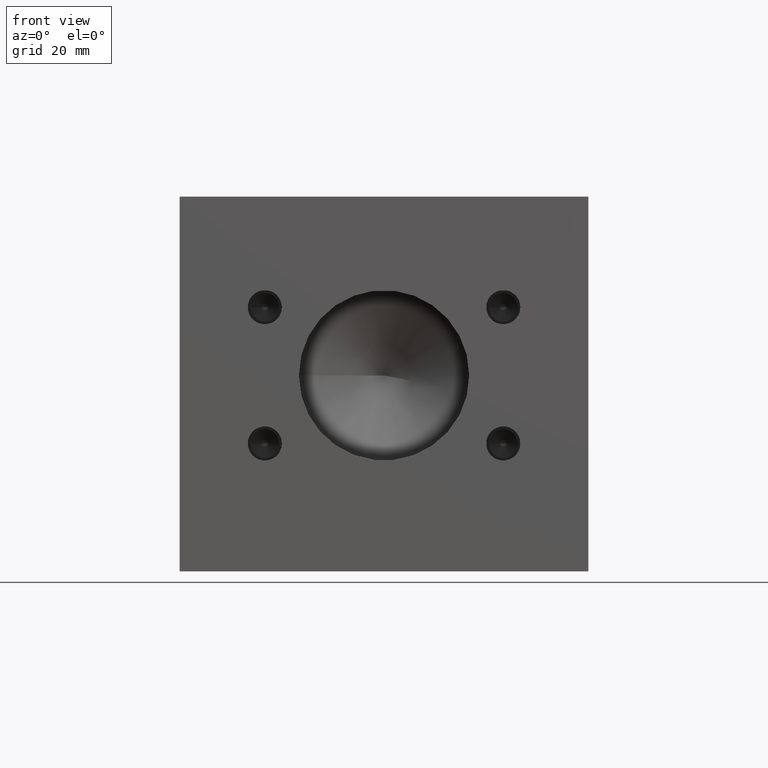
[diagram: clean part render]
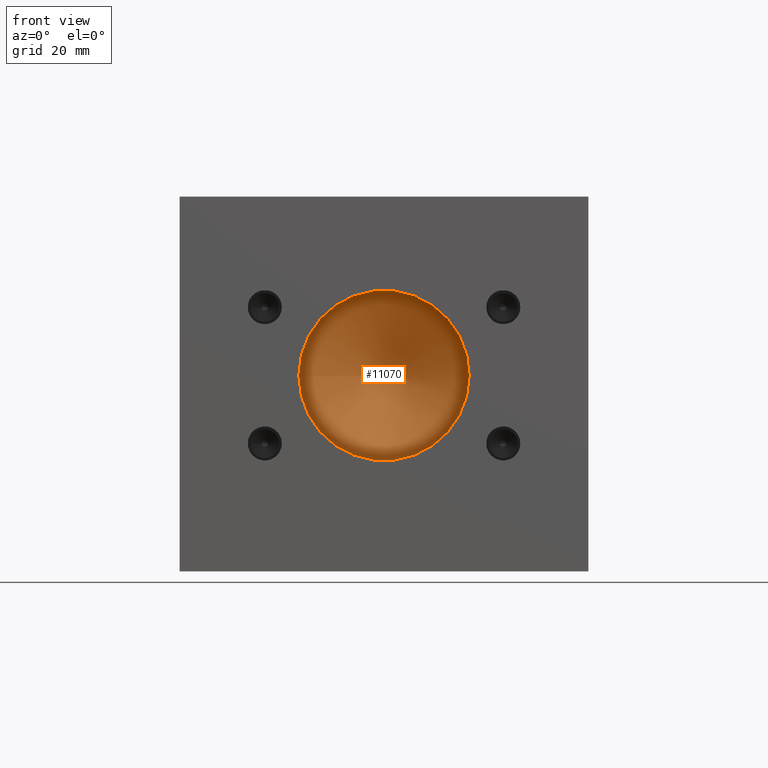
[diagram: same view with one face highlighted and labeled with its STEP entity id]
A machine part, front view. The second image highlights one B-rep face of the part: STEP entity #11070.
In plain terms, the highlighted conical surface has half-angle 60 deg.
Its self-contained STEP definition (entity closure, byte-faithful):
#91=CONICAL_SURFACE('',#11634,15.875,1.0471975511966);
#487=CIRCLE('',#11635,31.75);
#488=CIRCLE('',#11636,31.75);
#1216=FACE_OUTER_BOUND('',#1845,.T.);
#1845=EDGE_LOOP('',(#9267,#9268,#9269,#9270));
#2997=LINE('',#18315,#4086);
#4086=VECTOR('',#13808,15.875);
#5037=VERTEX_POINT('',#18311);
#5038=VERTEX_POINT('',#18312);
#5039=VERTEX_POINT('',#18314);
#6505=EDGE_CURVE('',#5037,#5038,#487,.T.);
#6506=EDGE_CURVE('',#5038,#5039,#2997,.T.);
#6507=EDGE_CURVE('',#5038,#5037,#488,.T.);
#9267=ORIENTED_EDGE('',*,*,#6505,.T.);
#9268=ORIENTED_EDGE('',*,*,#6506,.T.);
#9269=ORIENTED_EDGE('',*,*,#6506,.F.);
#9270=ORIENTED_EDGE('',*,*,#6507,.T.);
#11070=ADVANCED_FACE('',(#1216),#91,.F.);
#11634=AXIS2_PLACEMENT_3D('',#18310,#13804,#13805);
#11635=AXIS2_PLACEMENT_3D('',#18313,#13806,#13807);
#11636=AXIS2_PLACEMENT_3D('',#18316,#13809,#13810);
#13804=DIRECTION('center_axis',(0.,-1.,0.));
#13805=DIRECTION('ref_axis',(1.,0.,0.));
#13806=DIRECTION('center_axis',(0.,-1.,0.));
#13807=DIRECTION('ref_axis',(1.,0.,0.));
#13808=DIRECTION('',(0.866025403784439,0.5,1.06057523872491E-16));
#13809=DIRECTION('center_axis',(0.,-1.,0.));
#13810=DIRECTION('ref_axis',(1.,0.,0.));
#18310=CARTESIAN_POINT('Origin',(76.2,27.4963055233853,73.025));
#18311=CARTESIAN_POINT('',(107.95,18.33087,73.025));
#18312=CARTESIAN_POINT('',(44.45,18.33087,73.025));
#18313=CARTESIAN_POINT('Origin',(76.2,18.33087,73.025));
#18314=CARTESIAN_POINT('',(76.2,36.6617410467706,73.025));
#18315=CARTESIAN_POINT('',(60.325,27.4963055233853,73.025));
#18316=CARTESIAN_POINT('Origin',(76.2,18.33087,73.025));